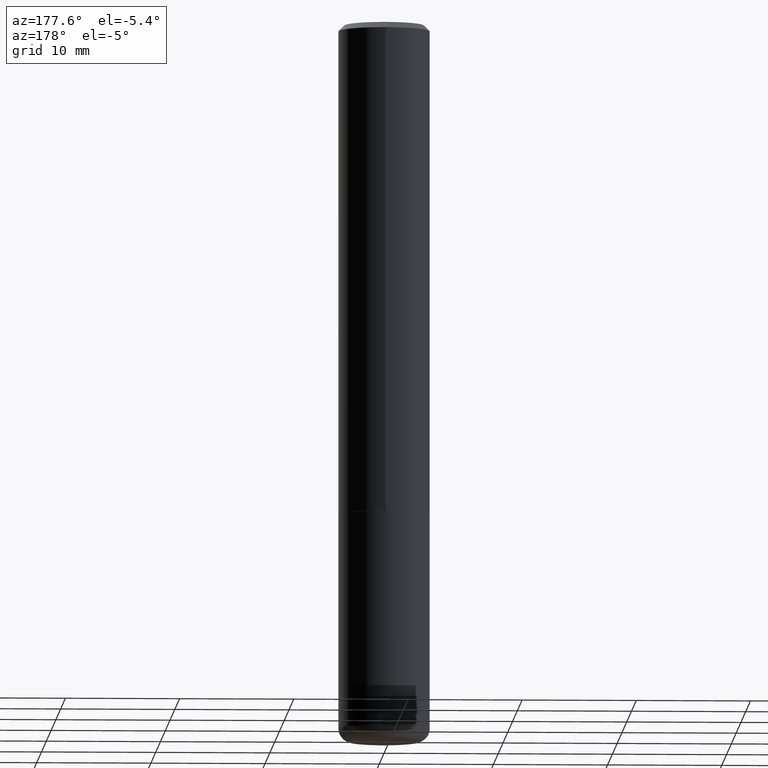
[diagram: clean part render]
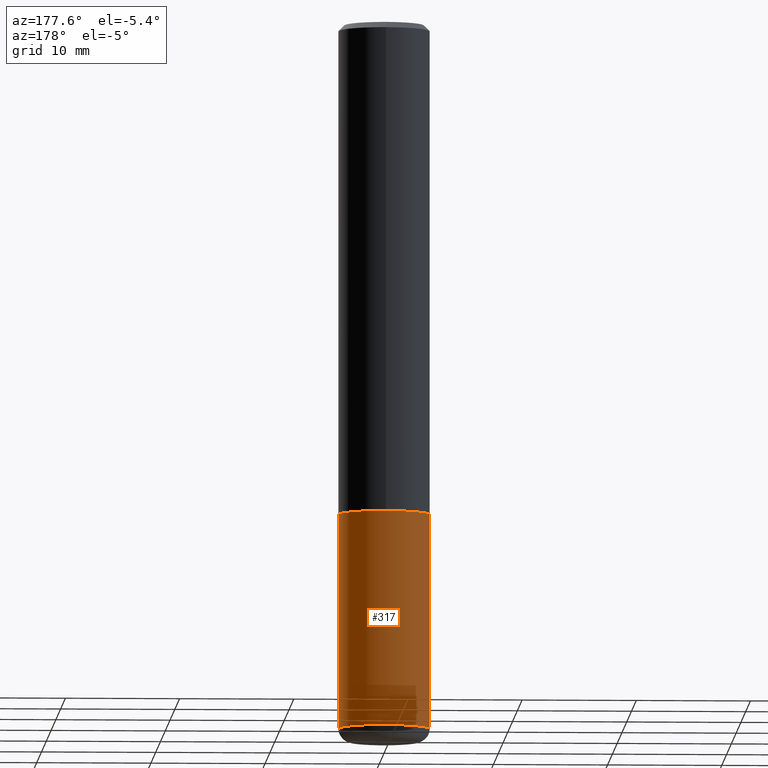
[diagram: same view with one face highlighted and labeled with its STEP entity id]
A machine part, auxiliary view. The second image highlights one B-rep face of the part: STEP entity #317.
In plain terms, the highlighted cylindrical surface (partial cylindrical patch) has radius 4.0005 mm, axis along (-0, 0, 1).
Its self-contained STEP definition (entity closure, byte-faithful):
#3 = CIRCLE ( 'NONE', #412, 0.1575000000000000011 ) ;
#8 = AXIS2_PLACEMENT_3D ( 'NONE', #70, #78, #360 ) ;
#49 = CARTESIAN_POINT ( 'NONE',  ( 0.1575000000000000011, -7.010545380263150133E-15, -1.692900000000000293 ) ) ;
#59 = EDGE_LOOP ( 'NONE', ( #327, #348, #67, #353 ) ) ;
#63 = EDGE_CURVE ( 'NONE', #305, #75, #246, .T. ) ;
#67 = ORIENTED_EDGE ( 'NONE', *, *, #188, .F. ) ;
#70 = CARTESIAN_POINT ( 'NONE',  ( 5.950070152329056268E-29, -8.495123245539257510E-15, -2.433100000000000041 ) ) ;
#72 = CARTESIAN_POINT ( 'NONE',  ( 4.139934141990818918E-29, -5.910728758527562653E-15, -1.692900000000000293 ) ) ;
#74 = EDGE_CURVE ( 'NONE', #155, #377, #213, .T. ) ;
#75 = VERTEX_POINT ( 'NONE', #49 ) ;
#78 = DIRECTION ( 'NONE',  ( -2.445468806185136597E-29, 3.491481338843145583E-15, 1.000000000000000000 ) ) ;
#88 = CARTESIAN_POINT ( 'NONE',  ( -0.1574999999999999456, 1.119104808822157406E-15, -7.747322767151474182E-30 ) ) ;
#95 = DIRECTION ( 'NONE',  ( -2.445468806185136597E-29, 3.491481338843145583E-15, 1.000000000000000000 ) ) ;
#128 = CARTESIAN_POINT ( 'NONE',  ( 0.1574999999999998346, -9.594939867274844201E-15, -2.433100000000000041 ) ) ;
#140 = VECTOR ( 'NONE', #370, 39.37007874015748143 ) ;
#146 = CARTESIAN_POINT ( 'NONE',  ( 0.1574999999999999456, -1.099816621735586691E-15, 7.679978421878596632E-30 ) ) ;
#155 = VERTEX_POINT ( 'NONE', #221 ) ;
#178 = DIRECTION ( 'NONE',  ( -2.445468806185136597E-29, 3.491481338843145583E-15, 1.000000000000000000 ) ) ;
#188 = EDGE_CURVE ( 'NONE', #75, #377, #3, .T. ) ;
#213 = LINE ( 'NONE', #88, #243 ) ;
#220 = EDGE_CURVE ( 'NONE', #305, #155, #281, .T. ) ;
#221 = CARTESIAN_POINT ( 'NONE',  ( -0.1574999999999998346, -7.376018436717101484E-15, -2.433100000000000041 ) ) ;
#243 = VECTOR ( 'NONE', #274, 39.37007874015748143 ) ;
#246 = LINE ( 'NONE', #146, #140 ) ;
#248 = FACE_OUTER_BOUND ( 'NONE', #59, .T. ) ;
#274 = DIRECTION ( 'NONE',  ( -2.445468806185136877E-29, 3.491481338843145188E-15, 1.000000000000000000 ) ) ;
#281 = CIRCLE ( 'NONE', #8, 0.1574999999999999456 ) ;
#305 = VERTEX_POINT ( 'NONE', #128 ) ;
#317 = ADVANCED_FACE ( 'NONE', ( #248 ), #403, .T. ) ;
#327 = ORIENTED_EDGE ( 'NONE', *, *, #220, .T. ) ;
#348 = ORIENTED_EDGE ( 'NONE', *, *, #74, .T. ) ;
#353 = ORIENTED_EDGE ( 'NONE', *, *, #63, .F. ) ;
#355 = AXIS2_PLACEMENT_3D ( 'NONE', #396, #95, #371 ) ;
#360 = DIRECTION ( 'NONE',  ( 1.000000000000000000, -6.982962677686270655E-15, 0.000000000000000000 ) ) ;
#370 = DIRECTION ( 'NONE',  ( -2.445468806185136877E-29, 3.491481338843145188E-15, 1.000000000000000000 ) ) ;
#371 = DIRECTION ( 'NONE',  ( 1.000000000000000000, -6.982962677686267499E-15, 4.876176775795935793E-29 ) ) ;
#377 = VERTEX_POINT ( 'NONE', #418 ) ;
#389 = DIRECTION ( 'NONE',  ( 1.000000000000000000, -6.982962677686268288E-15, 0.000000000000000000 ) ) ;
#396 = CARTESIAN_POINT ( 'NONE',  ( 0.000000000000000000, 0.000000000000000000, 0.000000000000000000 ) ) ;
#403 = CYLINDRICAL_SURFACE ( 'NONE', #355, 0.1574999999999999456 ) ;
#412 = AXIS2_PLACEMENT_3D ( 'NONE', #72, #178, #389 ) ;
#418 = CARTESIAN_POINT ( 'NONE',  ( -0.1575000000000000011, -6.083821193211252478E-15, -1.692900000000000293 ) ) ;